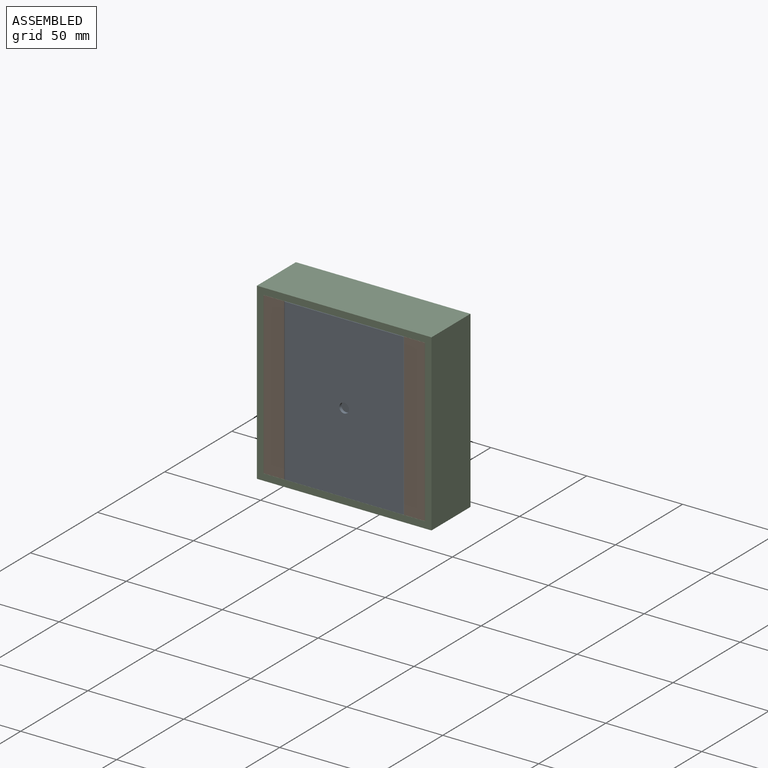
[diagram: assembled view]
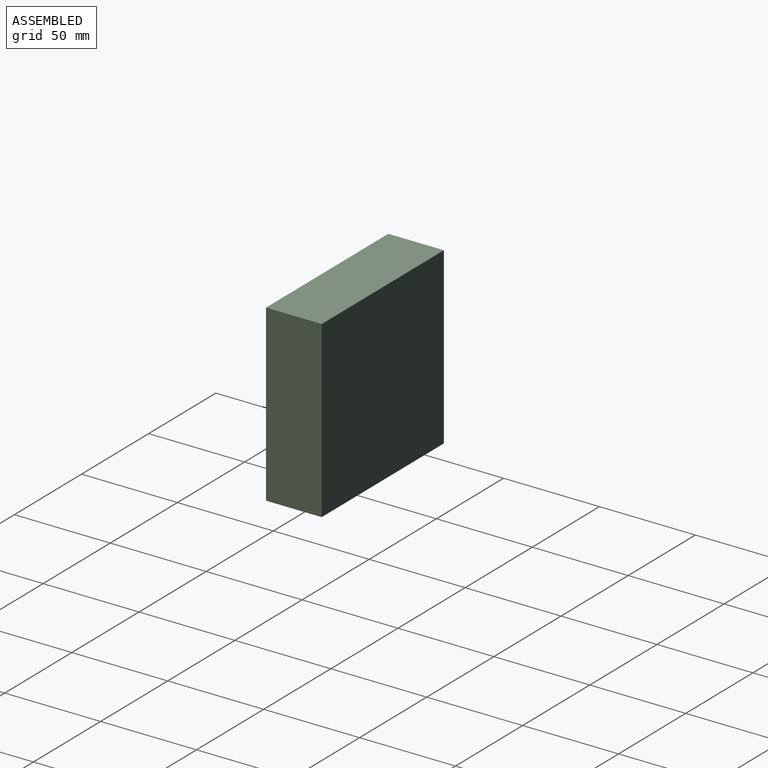
[diagram: assembled view, second angle]
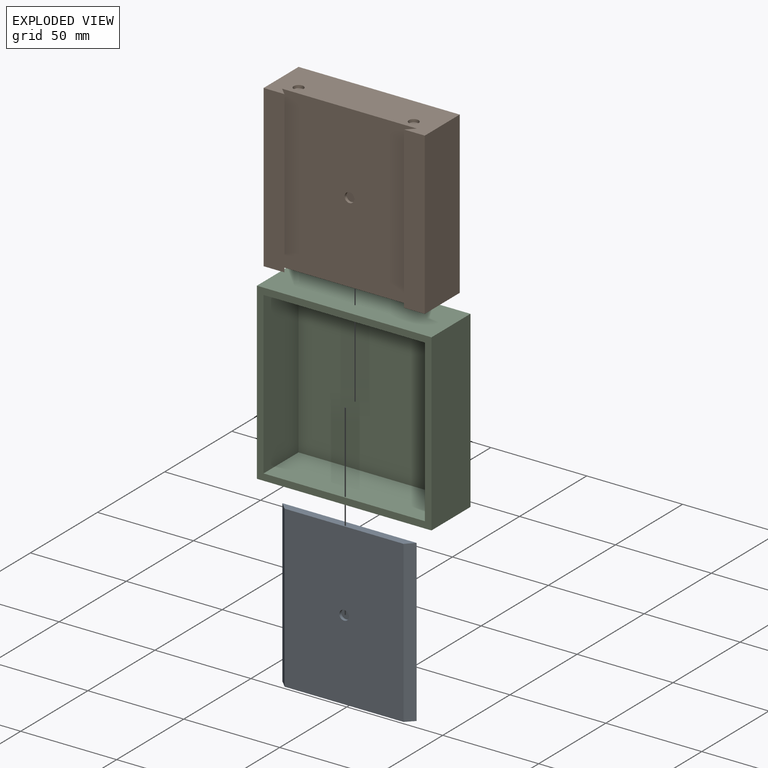
[diagram: exploded view]
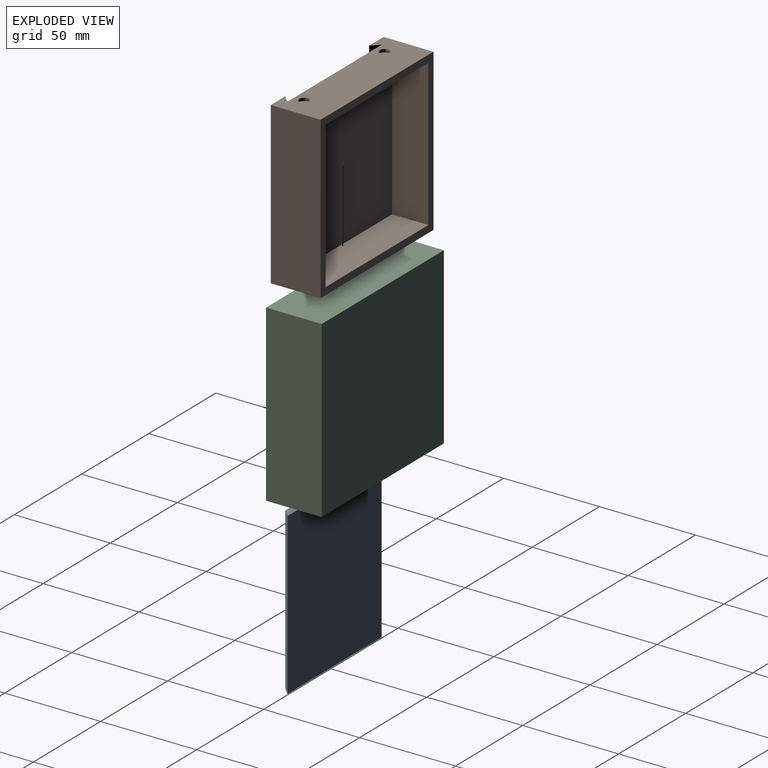
[diagram: exploded view, second angle]
FCSTD DOCUMENT  (FreeCAD 1.1R20260414 (Git shallow))
Label: 00_assembly
License: All rights reserved
LicenseURL: https://en.wikipedia.org/wiki/All_rights_reserved
objects: App::FeaturePython×7, App::Link×3, App::Point×1, Assembly::JointGroup×1, Assembly::AssemblyObject×1
EXTERNAL_REF file=01_wall_holder.FCStd obj=Body
EXTERNAL_REF file=02_case_bottom.FCStd obj=Body
EXTERNAL_REF file=03_case_top.FCStd obj=Body

FEATURE [App::Point] Origin001
  Role = Origin
FEATURE [App::Link] Body
  LinkedObject = -> <external 01_wall_holder.FCStd>#Body
FEATURE [App::FeaturePython] GroundedJoint  # Assembly grounded joint (typed FeaturePython)
  ObjectToGround = -> Body
FEATURE [App::Link] Body001
  LinkPlacement = pos=(-0.0292887,2,-4.2e-15) rot=(0,0,1;0rad)
  LinkedObject = -> <external 02_case_bottom.FCStd>#Body
  Placement = pos=(-0.0292887,2,-4.2e-15) rot=(0,0,1;0rad)
FEATURE [App::FeaturePython] Joint  label="Distance"  # Assembly joint (typed FeaturePython)
  Angle = 0
  AngleMax = 0
  AngleMin = 0
  Detach1 = false
  Detach2 = false
  Distance = 0
  Distance2 = 0
  EnableAngleMax = false
  EnableAngleMin = false
  EnableLengthMax = false
  EnableLengthMin = false
  JointType = 5 (Distance)
  LengthMax = 0
  LengthMin = 0
  Placement1 = pos=(-8.7e-15,-3.1e-15,7e-16) rot=(-0.57735,-0.57735,0.57735;4.18879rad)
  Placement2 = pos=(-9e-16,2,-1.7e-15) rot=(0.57735,0.57735,0.57735;4.18879rad)
  Reference1 = -> Body001 [Face13,Face13]
  Reference2 = -> Body [Face3,Vertex4]
  Suppressed = false
FEATURE [App::FeaturePython] Joint001  label="Distance001"  # Assembly joint (typed FeaturePython)
  Angle = 0
  AngleMax = 0
  AngleMin = 0
  Detach1 = false
  Detach2 = false
  Distance = 0.05
  Distance2 = 0
  EnableAngleMax = false
  EnableAngleMin = false
  EnableLengthMax = false
  EnableLengthMin = false
  JointType = 5 (Distance)
  LengthMax = 0
  LengthMin = 0
  Placement1 = pos=(-5.3e-15,0.040404,41.95) rot=(0,0,1;0rad)
  Placement2 = pos=(-2.4e-15,10.6997,42) rot=(0,0,1;0rad)
  Reference1 = -> Body [Pocket.Face5,Pocket.Face5]
  Reference2 = -> Body001 [Mirrored001.Face5,Mirrored001.Face5]
  Suppressed = false
FEATURE [App::FeaturePython] Joint002  label="Distance004"  # Assembly joint (typed FeaturePython)
  Angle = 0
  AngleMax = 0
  AngleMin = 0
  Detach1 = false
  Detach2 = false
  Distance = -0.05
  Distance2 = 0
  EnableAngleMax = false
  EnableAngleMin = false
  EnableLengthMax = false
  EnableLengthMin = false
  JointType = 5 (Distance)
  LengthMax = 0
  LengthMin = 0
  Placement1 = pos=(33,-9.3e-15,8.4e-15) rot=(-0.862856,-0.357407,0.357407;1.71777rad)
  Placement2 = pos=(33.15,-1.95,7.6e-15) rot=(-0.862856,-0.357407,0.357407;1.71777rad)
  Reference1 = -> Body [Pocket.Face6,Pocket.Face6]
  Reference2 = -> Body001 [Mirrored001.Face14,Mirrored001.Face14]
  Suppressed = false
FEATURE [App::Link] Body002
  LinkPlacement = pos=(-0.0292887,-1.9,-4e-16) rot=(0,0,1;3.14159rad)
  LinkedObject = -> <external 03_case_top.FCStd>#Body
  Placement = pos=(-0.0292887,-1.9,-4e-16) rot=(0,0,1;3.14159rad)
FEATURE [App::FeaturePython] Joint003  label="Distance005"  # Assembly joint (typed FeaturePython)
  Angle = 0
  AngleMax = 0
  AngleMin = 0
  Detach1 = false
  Detach2 = false
  Distance = 0
  Distance2 = 0
  EnableAngleMax = false
  EnableAngleMin = false
  EnableLengthMax = false
  EnableLengthMin = false
  JointType = 5 (Distance)
  LengthMax = 0
  LengthMin = 0
  Placement1 = pos=(1.5e-15,-26,6.8e-15) rot=(-0.57735,-0.57735,-0.57735;2.0944rad)
  Placement2 = pos=(8e-16,22.1,9.5e-15) rot=(-0.577928,-0.577928,-0.577928;2.0944rad)
  Reference1 = -> Body002 [Face11,Face11]
  Reference2 = -> Body001 [Face2,Vertex9]
  Suppressed = false
FEATURE [App::FeaturePython] Joint004  label="Distance006"  # Assembly joint (typed FeaturePython)
  Angle = 0
  AngleMax = 0
  AngleMin = 0
  Detach1 = false
  Detach2 = false
  Distance = 0.05
  Distance2 = 0
  EnableAngleMax = false
  EnableAngleMin = false
  EnableLengthMax = false
  EnableLengthMin = false
  JointType = 5 (Distance)
  LengthMax = 0
  LengthMin = 0
  Placement1 = pos=(-9e-16,-13,-42.05) rot=(0,0,1;0rad)
  Placement2 = pos=(4.7e-15,10.6997,-42) rot=(0,1,0;3.14159rad)
  Reference1 = -> Body002 [Face8,Vertex11]
  Reference2 = -> Body001 [Face4,Edge9]
  Suppressed = false
FEATURE [App::FeaturePython] Joint005  label="Distance007"  # Assembly joint (typed FeaturePython)
  Angle = 0
  AngleMax = 0
  AngleMin = 0
  Detach1 = false
  Detach2 = false
  Distance = -0.05
  Distance2 = 0
  EnableAngleMax = false
  EnableAngleMin = false
  EnableLengthMax = false
  EnableLengthMin = false
  JointType = 5 (Distance)
  LengthMax = 0
  LengthMin = 0
  Placement1 = pos=(-42,9.1,-2e-16) rot=(0.57735,-0.57735,0.57735;4.18879rad)
  Placement2 = pos=(42.05,-13,3.1e-15) rot=(0,-1,0;1.5708rad)
  Reference1 = -> Body001 [Face1,Face1]
  Reference2 = -> Body002 [Face7,Face7]
  Suppressed = false
FEATURE [Assembly::JointGroup] Joints
  Group = -> [GroundedJoint,Joint,Joint001,Joint002,Joint003,Joint004,Joint005]
FEATURE [Assembly::AssemblyObject] Assembly
  Group = -> [Joints,Body,GroundedJoint,Body001,Joint,Joint001,Joint002,Body002,Joint003,Joint004,Joint005]
  Origin = -> Origin
  Type = Assembly

RESOLVED EXTERNAL PARTS (link-assembly join: the EXTERNAL_REF files above that resolve inside this repo's crawl, each included once):
---- part 01_wall_holder.FCStd = doc fcstd_5aca91c74c03 ----
FCSTD DOCUMENT  (FreeCAD 1.1R20260414 (Git shallow))
Label: 01_wall_holder
License: All rights reserved
LicenseURL: https://en.wikipedia.org/wiki/All_rights_reserved
objects: Sketcher::SketchObject×2, App::Point×1, PartDesign::Pad×1, PartDesign::Mirrored×1, PartDesign::Pocket×1, PartDesign::Body×1
note: 13 computed .brp shape members not serialized (recipe doc carries the construction recipe); baked Part::Feature solids carry a one-line shape summary decoded from their .brp

FEATURE [App::Point] Origin001
  Role = Origin
FEATURE [Sketcher::SketchObject] Sketch
  ArcFitTolerance = 1e-06
  AttachmentSupport = -> [Origin]
  ExternalTypes = [0]
  FullyConstrained = true
  MakeInternals = false
  MapMode = 5
  _ExternalGeoVersion = 1
  sketch-geometry (4):
    g0: LineSegment StartX=0 StartY=2 StartZ=0 EndX=0 EndY=-2 EndZ=0
    g1: LineSegment StartX=0 StartY=-2 StartZ=0 EndX=-31 EndY=-2 EndZ=0
    g2: LineSegment StartX=-31 StartY=-2 StartZ=0 EndX=-35 EndY=2 EndZ=0
    g3: LineSegment StartX=-35 StartY=2 StartZ=0 EndX=0 EndY=2 EndZ=0
  constraints (12):
    c: PointOnObject(g0,g-2)
    c: PointOnObject(g0,g-2)
    c: Coincident(g1,g0)
    c: Horizontal(g1)
    c: Coincident(g2,g1)
    c: Coincident(g3,g0)
    c: Coincident(g3,g2)
    c: Horizontal(g3)
    c: Distance(g0,g0) = 4
    c: Distance(g-1,g0) = 2
    c: Angle(g2,g3) = 0.785398
    c: DistanceX(g3,g3) = 35
FEATURE [PartDesign::Pad] Pad
  Direction = (0,0,1)
  Length = 83.9
  Length2 = 10
  Profile = -> Sketch
  ReferenceAxis = -> Sketch [N_Axis]
  Refine = true
  SideType = 2
  Suppressed = false
  Type = 0
  Type2 = 0
FEATURE [PartDesign::Mirrored] Mirrored
  BaseFeature = -> Pad
  MirrorPlane = -> YZ_Plane
  Refine = true
  Suppressed = false
  TransformMode = 1
FEATURE [Sketcher::SketchObject] Sketch001
  ArcFitTolerance = 1e-06
  AttachmentSupport = -> [Mirrored]
  ExternalTypes = [0]
  FullyConstrained = true
  MakeInternals = false
  MapMode = 5
  Placement = pos=(0,-2,0) rot=(1,0,0;1.5708rad)
  _ExternalGeoVersion = 1
  sketch-geometry (1):
    g0: Circle CenterX=0 CenterY=0 CenterZ=0 NormalX=0 NormalY=0 NormalZ=1 AngleXU=0 Radius=2.5
  constraints (2):
    c: Coincident(g0,g-1)
    c: Diameter(g0) = 5
FEATURE [PartDesign::Pocket] Pocket
  BaseFeature = -> Mirrored
  Direction = (0,1,-2e-16)
  Length = 1.6
  Length2 = 5
  Profile = -> Sketch001
  ReferenceAxis = -> Sketch001 [N_Axis]
  Refine = true
  SideType = 0
  Suppressed = false
  Type = 0
  Type2 = 0
FEATURE [PartDesign::Body] Body
  AllowCompound = true
  Group = -> [Sketch,Pad,Mirrored,Sketch001,Pocket]
  Origin = -> Origin
  Tip = -> Pocket
---- part 02_case_bottom.FCStd = doc fcstd_b28af8be3645 ----
FCSTD DOCUMENT  (FreeCAD 1.1R20260414 (Git shallow))
Label: 02_case_bottom
License: All rights reserved
LicenseURL: https://en.wikipedia.org/wiki/All_rights_reserved
objects: Sketcher::SketchObject×4, PartDesign::Pocket×3, PartDesign::Mirrored×2, App::Point×1, PartDesign::Pad×1, PartDesign::Body×1
note: 25 computed .brp shape members not serialized (recipe doc carries the construction recipe); baked Part::Feature solids carry a one-line shape summary decoded from their .brp

FEATURE [App::Point] Origin001
  Role = Origin
FEATURE [Sketcher::SketchObject] Sketch
  ArcFitTolerance = 1e-06
  AttachmentSupport = -> [Origin]
  ExternalTypes = [0]
  FullyConstrained = true
  MakeInternals = false
  MapMode = 5
  _ExternalGeoVersion = 1
  sketch-geometry (6):
    g0: LineSegment StartX=-42 StartY=22.1 StartZ=0 EndX=-42 EndY=-3.9 EndZ=0
    g1: LineSegment StartX=-42 StartY=-3.9 StartZ=0 EndX=-31.2 EndY=-3.9 EndZ=0
    g2: LineSegment StartX=-31.2 StartY=-3.9 StartZ=0 EndX=-35.1 EndY=-4e-16 EndZ=0
    g3: LineSegment StartX=-35.1 StartY=0 StartZ=0 EndX=0 EndY=0 EndZ=0
    g4: LineSegment StartX=0 StartY=0 StartZ=0 EndX=0 EndY=22.1 EndZ=0
    g5: LineSegment StartX=0 StartY=22.1 StartZ=0 EndX=-42 EndY=22.1 EndZ=0
  constraints (18):
    c: Coincident(g1,g0)
    c: Horizontal(g1)
    c: Coincident(g2,g1)
    c: Coincident(g3,g2)
    c: PointOnObject(g3,g-2)
    c: Horizontal(g3)
    c: Coincident(g4,g3)
    c: PointOnObject(g5,g-2)
    c: Horizontal(g5)
    c: Coincident(g5,g0)
    c: Vertical(g0)
    c: Angle(g2,g3) = 0.785398
    c: Distance(g1,g3) = 3.9
    c: DistanceX(g3,g3) = 35.1
    c: DistanceX(g5,g5) = 42
    c: PointOnObject(g-1,g3)
    c: DistanceY(g0,g0) = 26
    c: Coincident(g4,g5)
FEATURE [PartDesign::Pad] Pad
  Direction = (0,0,1)
  Length = 84
  Length2 = 10
  Profile = -> Sketch
  ReferenceAxis = -> Sketch [N_Axis]
  Refine = true
  SideType = 2
  Suppressed = false
  Type = 0
  Type2 = 0
FEATURE [PartDesign::Mirrored] Mirrored
  BaseFeature = -> Pad
  MirrorPlane = -> YZ_Plane
  Refine = true
  Suppressed = false
  TransformMode = 1
FEATURE [Sketcher::SketchObject] Sketch001
  ArcFitTolerance = 1e-06
  AttachmentSupport = -> [Mirrored]
  ExternalTypes = [0]
  FullyConstrained = true
  MakeInternals = false
  MapMode = 5
  Placement = pos=(0,-3.1e-15,0) rot=(1,0,0;1.5708rad)
  _ExternalGeoVersion = 1
  sketch-geometry (1):
    g0: Circle CenterX=0 CenterY=0 CenterZ=0 NormalX=0 NormalY=0 NormalZ=1 AngleXU=0 Radius=2.5
  constraints (2):
    c: Coincident(g0,g-1)
    c: Diameter(g0) = 5
FEATURE [PartDesign::Pocket] Pocket
  BaseFeature = -> Mirrored
  Direction = (0,1,-2e-16)
  Length = 1.5
  Length2 = 5
  Profile = -> Sketch001
  ReferenceAxis = -> Sketch001 [N_Axis]
  Refine = true
  SideType = 0
  Suppressed = false
  Type = 0
  Type2 = 0
FEATURE [Sketcher::SketchObject] Sketch002
  ArcFitTolerance = 1e-06
  AttachmentSupport = -> [Pocket]
  ExternalTypes = [0]
  FullyConstrained = true
  MakeInternals = false
  MapMode = 5
  Placement = pos=(0,22.1,0) rot=(0,0.707107,0.707107;3.14159rad)
  _ExternalGeoVersion = 1
  sketch-geometry (5):
    g0: LineSegment StartX=-38.25 StartY=38.25 StartZ=0 EndX=-38.25 EndY=-38.25 EndZ=0
    g1: LineSegment StartX=-38.25 StartY=-38.25 StartZ=0 EndX=38.25 EndY=-38.25 EndZ=0
    g2: LineSegment StartX=38.25 StartY=-38.25 StartZ=0 EndX=38.25 EndY=38.25 EndZ=0
    g3: LineSegment StartX=38.25 StartY=38.25 StartZ=0 EndX=-38.25 EndY=38.25 EndZ=0
    g4: LineSegment [constr] StartX=-38.25 StartY=38.25 StartZ=0 EndX=38.25 EndY=-38.25 EndZ=0
  constraints (13):
    c: Coincident(g0,g1)
    c: Coincident(g1,g2)
    c: Coincident(g2,g3)
    c: Coincident(g3,g0)
    c: Vertical(g0)
    c: Vertical(g2)
    c: Horizontal(g1)
    c: Horizontal(g3)
    c: DistanceX(g3,g3) = 76.5
    c: Coincident(g4,g0)
    c: Coincident(g4,g1)
    c: Symmetric(g0,g1,g-1)
    c: Equal(g3,g0)
FEATURE [PartDesign::Pocket] Pocket001
  BaseFeature = -> Pocket
  Direction = (0,-1,2e-16)
  Length = 19
  Length2 = 5
  Profile = -> Sketch002
  ReferenceAxis = -> Sketch002 [N_Axis]
  Refine = true
  SideType = 0
  Suppressed = false
  Type = 0
  Type2 = 0
FEATURE [Sketcher::SketchObject] Sketch003
  ArcFitTolerance = 1e-06
  AttachmentSupport = -> [Pocket001]
  ExternalTypes = [0]
  FullyConstrained = true
  MakeInternals = false
  MapMode = 5
  Placement = pos=(0,0,42) rot=(0,0,1;0rad)
  _ExternalGeoVersion = 1
  sketch-geometry (6):
    g0: Circle CenterX=-30 CenterY=5 CenterZ=0 NormalX=0 NormalY=0 NormalZ=1 AngleXU=0 Radius=2.55
    g1: LineSegment [constr] StartX=-30 StartY=5 StartZ=0 EndX=0 EndY=5 EndZ=0
    g2: LineSegment [constr] StartX=-30 StartY=5 StartZ=0 EndX=-30 EndY=0 EndZ=0
    g3: LineSegment [constr] StartX=0 StartY=5 StartZ=0 EndX=30 EndY=5 EndZ=0
    g4: LineSegment [constr] StartX=30 StartY=5 StartZ=0 EndX=30 EndY=0 EndZ=0
    g5: Circle CenterX=30 CenterY=5 CenterZ=0 NormalX=0 NormalY=0 NormalZ=1 AngleXU=0 Radius=2.55
  constraints (17):
    c: Coincident(g1,g0)
    c: PointOnObject(g1,g-2)
    c: Horizontal(g1)
    c: Coincident(g2,g0)
    c: PointOnObject(g2,g-1)
    c: Vertical(g2)
    c: DistanceX(g1,g1) = 30
    c: Distance(g2,g2) = 5
    c: Diameter(g0) = 5.1
    c: Coincident(g3,g1)
    c: Horizontal(g3)
    c: PointOnObject(g4,g-1)
    c: Vertical(g4)
    c: Equal(g1,g3)
    c: Coincident(g4,g3)
    c: Coincident(g5,g3)
    c: Equal(g0,g5)
FEATURE [PartDesign::Pocket] Pocket002
  BaseFeature = -> Pocket001
  Direction = (0,0,-1)
  Length = 1.5
  Length2 = 5
  Profile = -> Sketch003
  ReferenceAxis = -> Sketch003 [N_Axis]
  Refine = true
  SideType = 0
  Suppressed = false
  Type = 0
  Type2 = 0
FEATURE [PartDesign::Mirrored] Mirrored001
  BaseFeature = -> Pocket002
  MirrorPlane = -> XY_Plane
  Originals = -> [Pocket002]
  Refine = true
  Suppressed = false
  TransformMode = 0
FEATURE [PartDesign::Body] Body
  AllowCompound = true
  Group = -> [Sketch,Pad,Mirrored,Sketch001,Pocket,Sketch002,Pocket001,Sketch003,Pocket002,Mirrored001]
  Origin = -> Origin
  Tip = -> Mirrored001
---- part 03_case_top.FCStd = doc fcstd_989579c6e136 ----
FCSTD DOCUMENT  (FreeCAD 1.1R20260414 (Git shallow))
Label: 03_case_top
License: All rights reserved
LicenseURL: https://en.wikipedia.org/wiki/All_rights_reserved
objects: Sketcher::SketchObject×2, App::Point×1, PartDesign::Pad×1, PartDesign::Pocket×1, PartDesign::Body×1
note: 11 computed .brp shape members not serialized (recipe doc carries the construction recipe); baked Part::Feature solids carry a one-line shape summary decoded from their .brp

FEATURE [App::Point] Origin001
  Role = Origin
FEATURE [Sketcher::SketchObject] Sketch
  ArcFitTolerance = 1e-06
  AttachmentSupport = -> [Origin]
  ExternalTypes = [0]
  FullyConstrained = true
  MakeInternals = false
  MapMode = 5
  Placement = pos=(0,0,0) rot=(1,0,0;1.5708rad)
  _ExternalGeoVersion = 1
  sketch-geometry (5):
    g0: LineSegment StartX=-45.5 StartY=45.5 StartZ=0 EndX=-45.5 EndY=-45.5 EndZ=0
    g1: LineSegment StartX=-45.5 StartY=-45.5 StartZ=0 EndX=45.5 EndY=-45.5 EndZ=0
    g2: LineSegment StartX=45.5 StartY=-45.5 StartZ=0 EndX=45.5 EndY=45.5 EndZ=0
    g3: LineSegment StartX=45.5 StartY=45.5 StartZ=0 EndX=-45.5 EndY=45.5 EndZ=0
    g4: LineSegment [constr] StartX=-45.5 StartY=45.5 StartZ=0 EndX=45.5 EndY=-45.5 EndZ=0
  constraints (13):
    c: Coincident(g0,g1)
    c: Coincident(g1,g2)
    c: Coincident(g2,g3)
    c: Coincident(g3,g0)
    c: Vertical(g0)
    c: Vertical(g2)
    c: Horizontal(g1)
    c: Horizontal(g3)
    c: Coincident(g4,g0)
    c: Coincident(g4,g1)
    c: DistanceX(g3,g3) = 91
    c: Symmetric(g0,g1,g-1)
    c: Equal(g3,g0)
FEATURE [PartDesign::Pad] Pad
  Direction = (0,-1,0)
  Length = 29
  Length2 = 10
  Profile = -> Sketch
  ReferenceAxis = -> Sketch [N_Axis]
  Refine = true
  SideType = 0
  Suppressed = false
  Type = 0
  Type2 = 0
FEATURE [Sketcher::SketchObject] Sketch001
  ArcFitTolerance = 1e-06
  AttachmentSupport = -> [Origin]
  ExternalTypes = [0]
  FullyConstrained = true
  MakeInternals = false
  MapMode = 5
  Placement = pos=(0,0,0) rot=(1,0,0;1.5708rad)
  _ExternalGeoVersion = 1
  sketch-geometry (5):
    g0: LineSegment StartX=42.05 StartY=42.05 StartZ=0 EndX=-42.05 EndY=42.05 EndZ=0
    g1: LineSegment StartX=-42.05 StartY=42.05 StartZ=0 EndX=-42.05 EndY=-42.05 EndZ=0
    g2: LineSegment StartX=-42.05 StartY=-42.05 StartZ=0 EndX=42.05 EndY=-42.05 EndZ=0
    g3: LineSegment StartX=42.05 StartY=-42.05 StartZ=0 EndX=42.05 EndY=42.05 EndZ=0
    g4: LineSegment [constr] StartX=42.05 StartY=42.05 StartZ=0 EndX=-42.05 EndY=-42.05 EndZ=0
  constraints (13):
    c: Coincident(g0,g1)
    c: Coincident(g1,g2)
    c: Coincident(g2,g3)
    c: Coincident(g3,g0)
    c: Horizontal(g0)
    c: Horizontal(g2)
    c: Vertical(g1)
    c: Vertical(g3)
    c: DistanceX(g0,g0) = 84.1
    c: Coincident(g4,g0)
    c: Coincident(g4,g1)
    c: Symmetric(g0,g1,g-1)
    c: Equal(g0,g3)
FEATURE [PartDesign::Pocket] Pocket
  BaseFeature = -> Pad
  Direction = (0,1,0)
  Length = 26
  Length2 = 5
  Profile = -> Sketch001
  ReferenceAxis = -> Sketch001 [N_Axis]
  Refine = true
  Reversed = true
  SideType = 0
  Suppressed = false
  Type = 0
  Type2 = 0
FEATURE [PartDesign::Body] Body
  AllowCompound = true
  Group = -> [Sketch,Pad,Sketch001,Pocket]
  Origin = -> Origin
  Tip = -> Pocket
